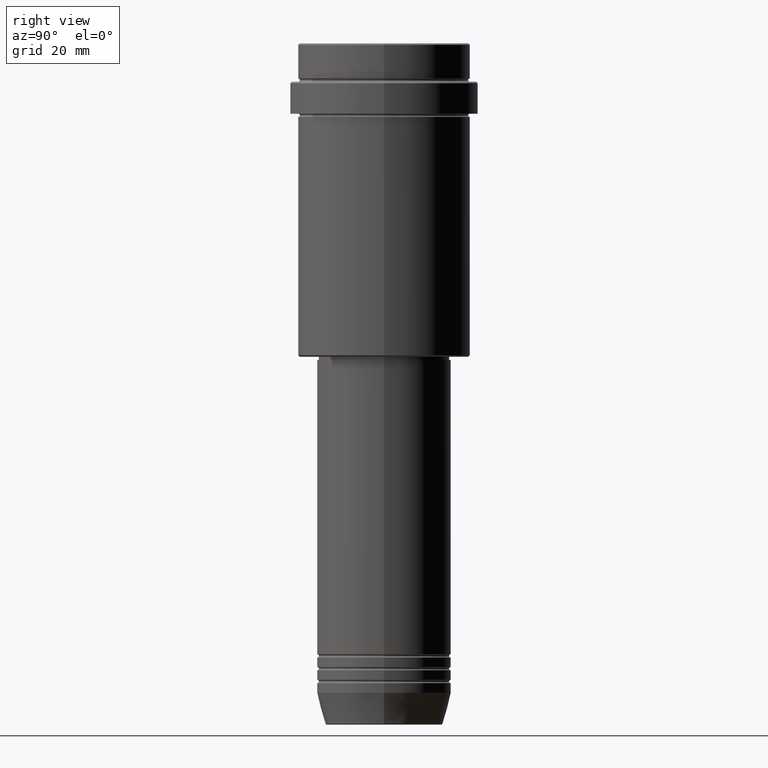
[diagram: clean part render]
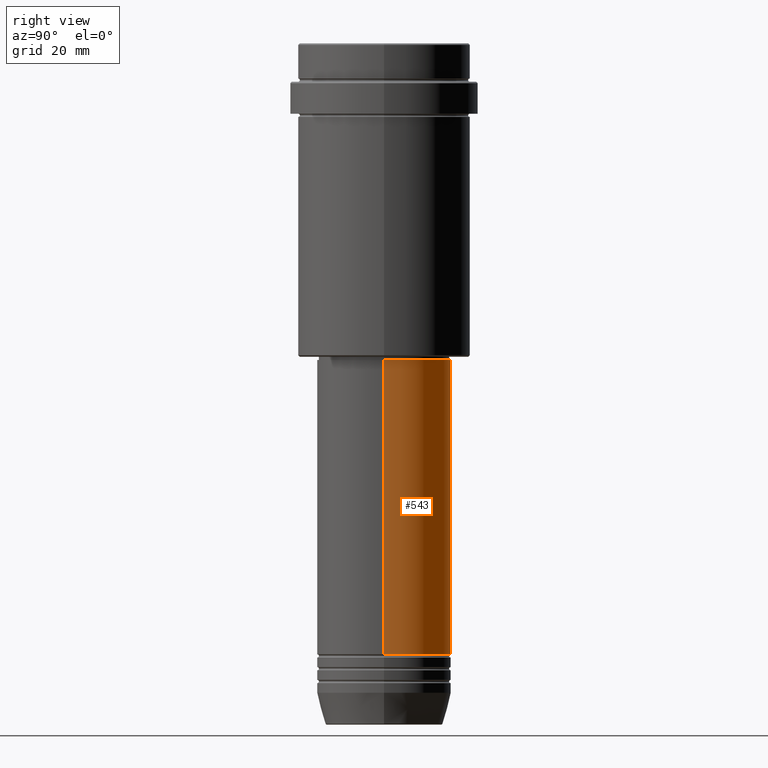
[diagram: same view with one face highlighted and labeled with its STEP entity id]
A machine part, right view. The second image highlights one B-rep face of the part: STEP entity #543.
In plain terms, the highlighted cylindrical surface (partial cylindrical patch) has radius 21 mm, axis along (-0, -0, 1).
Its self-contained STEP definition (entity closure, byte-faithful):
#14 = CYLINDRICAL_SURFACE ( 'NONE', #764, 21.00000000000000000 ) ;
#20 = DIRECTION ( 'NONE',  ( -0.000000000000000000, -0.000000000000000000, 1.000000000000000000 ) ) ;
#52 = ORIENTED_EDGE ( 'NONE', *, *, #1310, .F. ) ;
#85 = EDGE_CURVE ( 'NONE', #400, #945, #805, .T. ) ;
#156 = ORIENTED_EDGE ( 'NONE', *, *, #838, .T. ) ;
#167 = CARTESIAN_POINT ( 'NONE',  ( 21.00000000000000000, 0.000000000000000000, -190.9999999999999147 ) ) ;
#185 = VECTOR ( 'NONE', #726, 1000.000000000000000 ) ;
#237 = DIRECTION ( 'NONE',  ( 1.000000000000000000, 0.000000000000000000, 0.000000000000000000 ) ) ;
#260 = DIRECTION ( 'NONE',  ( -0.000000000000000000, -0.000000000000000000, 1.000000000000000000 ) ) ;
#367 = CARTESIAN_POINT ( 'NONE',  ( 0.000000000000000000, 0.000000000000000000, -190.9999999999999147 ) ) ;
#397 = DIRECTION ( 'NONE',  ( -0.000000000000000000, -0.000000000000000000, 1.000000000000000000 ) ) ;
#400 = VERTEX_POINT ( 'NONE', #1161 ) ;
#438 = CARTESIAN_POINT ( 'NONE',  ( -21.00000000000000000, 2.571758278209441661E-15, -99.00000000000000000 ) ) ;
#439 = CARTESIAN_POINT ( 'NONE',  ( 0.000000000000000000, 0.000000000000000000, 0.000000000000000000 ) ) ;
#459 = EDGE_LOOP ( 'NONE', ( #156, #1046, #679, #52 ) ) ;
#527 = CIRCLE ( 'NONE', #1257, 21.00000000000000000 ) ;
#543 = ADVANCED_FACE ( 'NONE', ( #669 ), #14, .T. ) ;
#548 = AXIS2_PLACEMENT_3D ( 'NONE', #1004, #1224, #237 ) ;
#603 = DIRECTION ( 'NONE',  ( 1.000000000000000000, 0.000000000000000000, 0.000000000000000000 ) ) ;
#612 = CARTESIAN_POINT ( 'NONE',  ( 21.00000000000000000, 0.000000000000000000, 0.000000000000000000 ) ) ;
#643 = CARTESIAN_POINT ( 'NONE',  ( -21.00000000000000000, 2.571758278209441661E-15, -190.9999999999999147 ) ) ;
#669 = FACE_OUTER_BOUND ( 'NONE', #459, .T. ) ;
#679 = ORIENTED_EDGE ( 'NONE', *, *, #85, .F. ) ;
#726 = DIRECTION ( 'NONE',  ( -0.000000000000000000, -0.000000000000000000, 1.000000000000000000 ) ) ;
#764 = AXIS2_PLACEMENT_3D ( 'NONE', #439, #20, #1313 ) ;
#805 = CIRCLE ( 'NONE', #548, 21.00000000000000000 ) ;
#838 = EDGE_CURVE ( 'NONE', #1145, #955, #527, .T. ) ;
#849 = CARTESIAN_POINT ( 'NONE',  ( -21.00000000000000000, 2.571758278209441661E-15, 0.000000000000000000 ) ) ;
#945 = VERTEX_POINT ( 'NONE', #438 ) ;
#955 = VERTEX_POINT ( 'NONE', #643 ) ;
#1004 = CARTESIAN_POINT ( 'NONE',  ( 0.000000000000000000, 0.000000000000000000, -99.00000000000000000 ) ) ;
#1046 = ORIENTED_EDGE ( 'NONE', *, *, #1352, .T. ) ;
#1077 = LINE ( 'NONE', #849, #185 ) ;
#1117 = VECTOR ( 'NONE', #397, 1000.000000000000000 ) ;
#1145 = VERTEX_POINT ( 'NONE', #167 ) ;
#1161 = CARTESIAN_POINT ( 'NONE',  ( 21.00000000000000000, 0.000000000000000000, -99.00000000000000000 ) ) ;
#1166 = LINE ( 'NONE', #612, #1117 ) ;
#1224 = DIRECTION ( 'NONE',  ( -0.000000000000000000, -0.000000000000000000, 1.000000000000000000 ) ) ;
#1257 = AXIS2_PLACEMENT_3D ( 'NONE', #367, #260, #603 ) ;
#1310 = EDGE_CURVE ( 'NONE', #1145, #400, #1166, .T. ) ;
#1313 = DIRECTION ( 'NONE',  ( 1.000000000000000000, 0.000000000000000000, 0.000000000000000000 ) ) ;
#1352 = EDGE_CURVE ( 'NONE', #955, #945, #1077, .T. ) ;